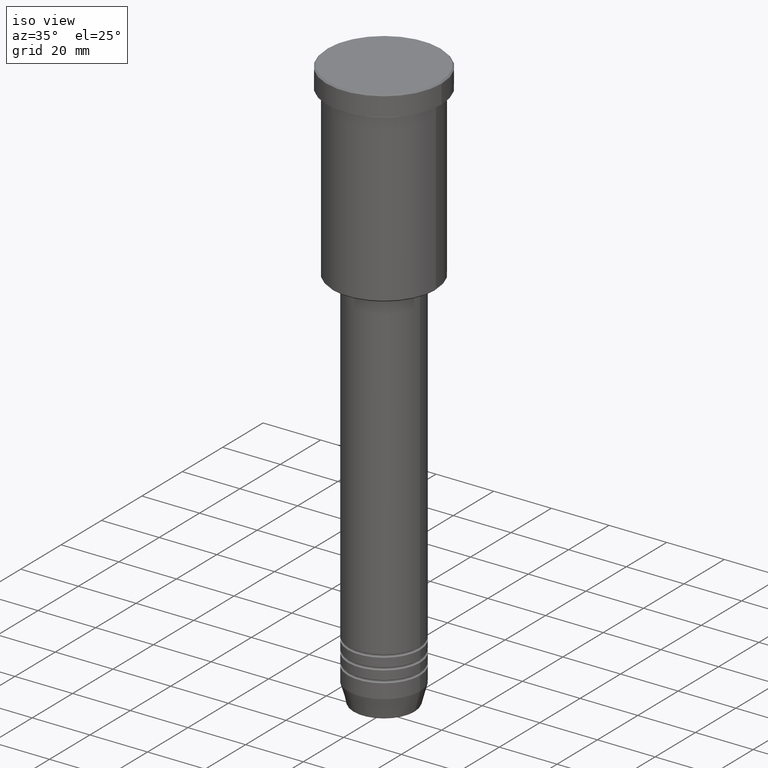
[diagram: clean part render]
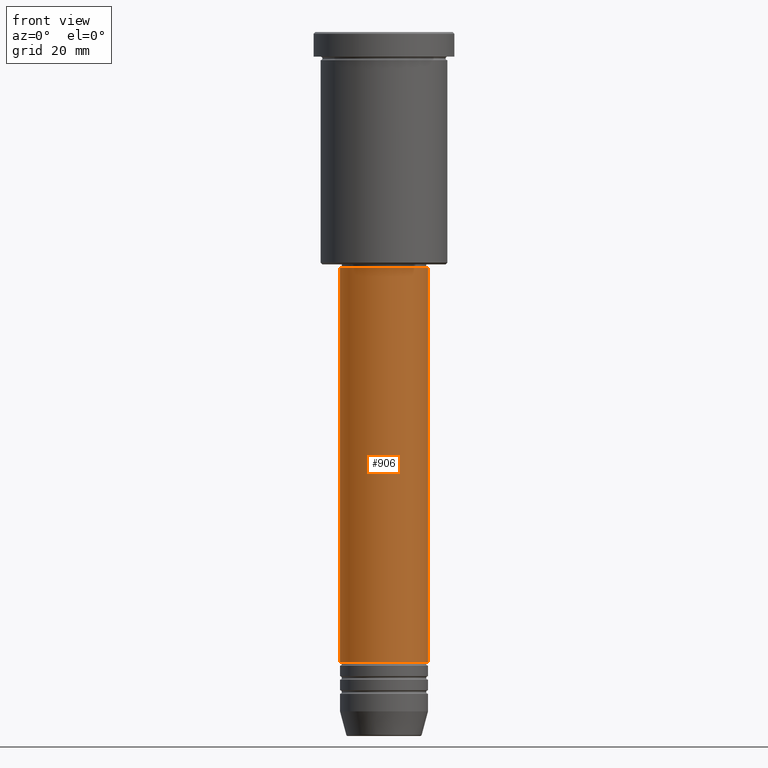
[diagram: tour spotlight — one face highlighted and labeled with its STEP entity id]
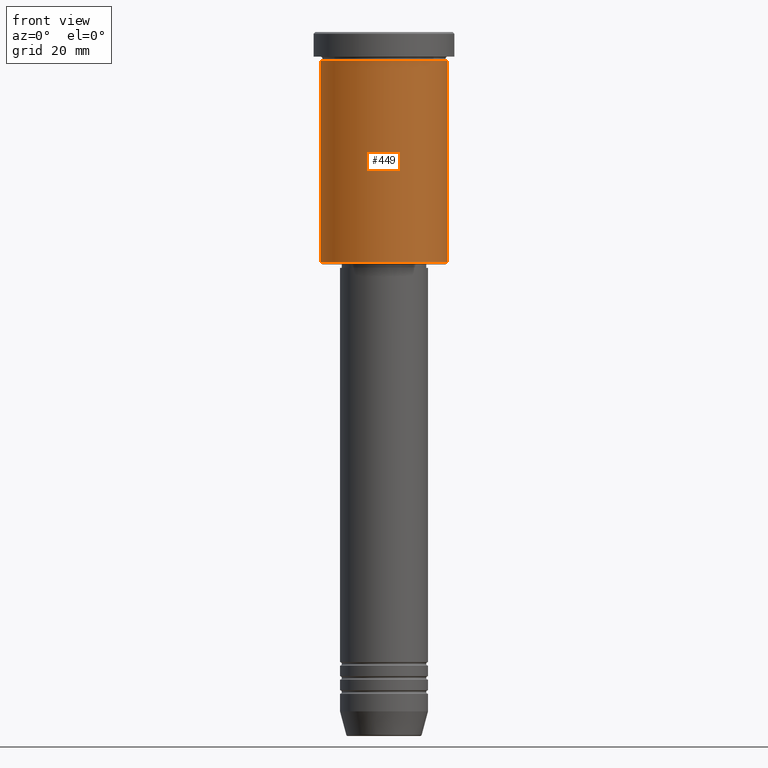
[diagram: tour spotlight — one face highlighted and labeled with its STEP entity id]
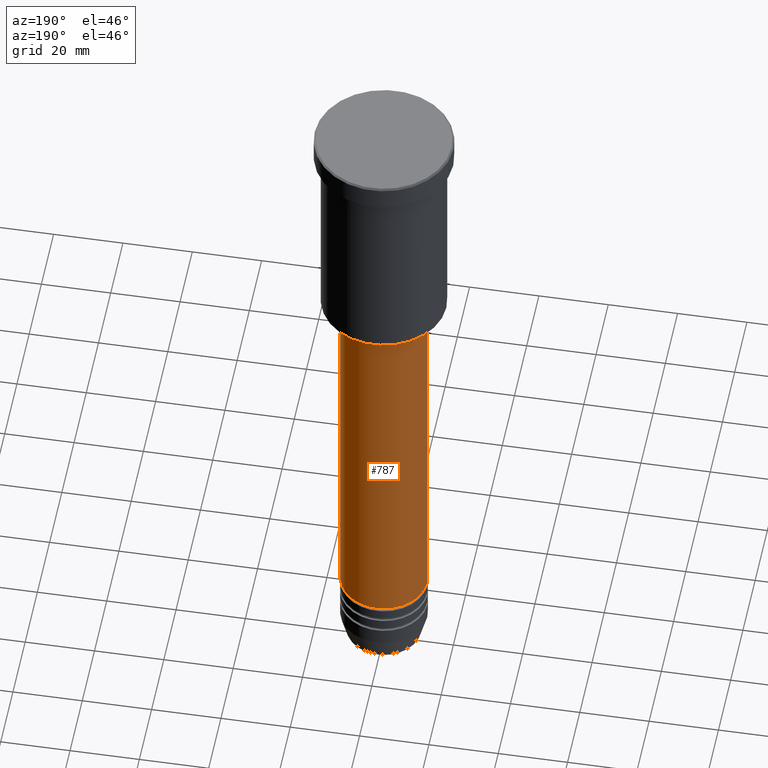
[diagram: tour spotlight — one face highlighted and labeled with its STEP entity id]
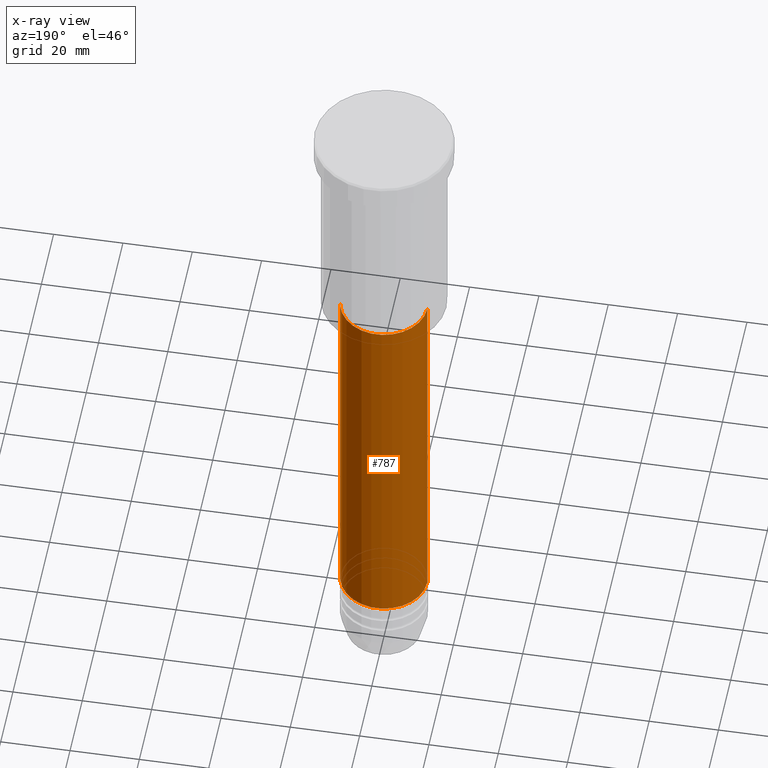
[diagram: x-ray of the same camera — body ghosted, this tour face saturated]
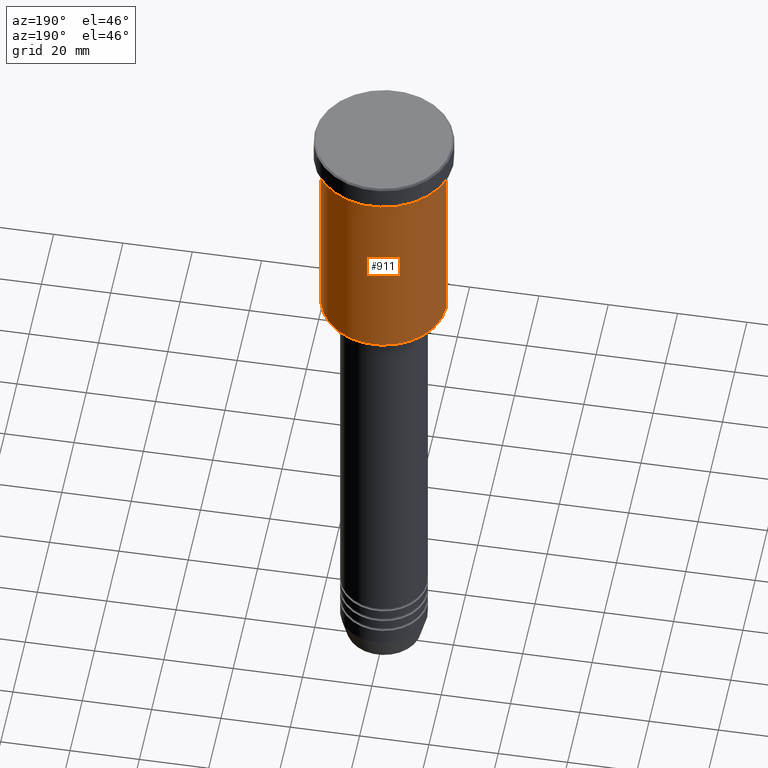
[diagram: tour spotlight — one face highlighted and labeled with its STEP entity id]
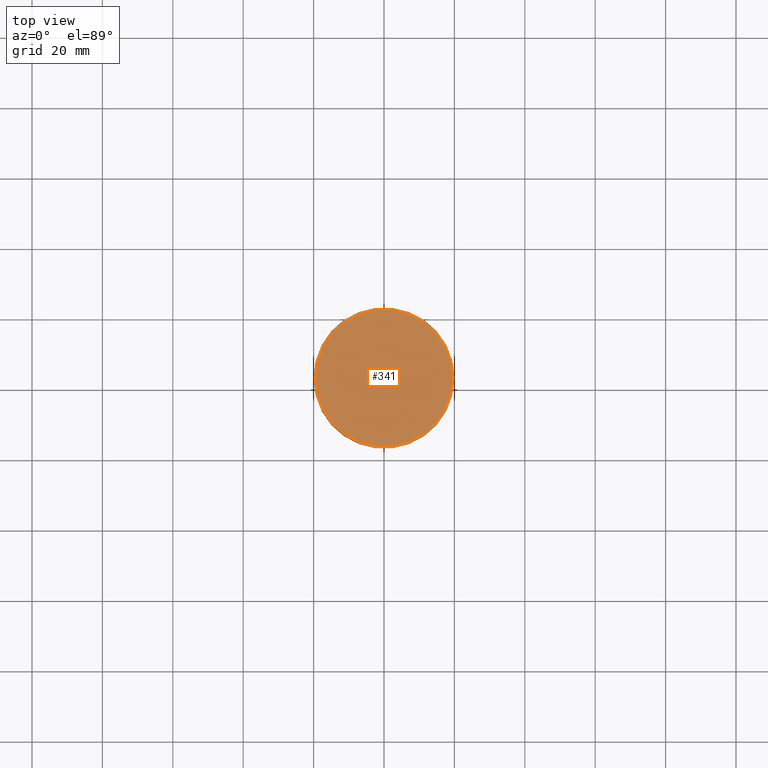
[diagram: tour spotlight — one face highlighted and labeled with its STEP entity id]
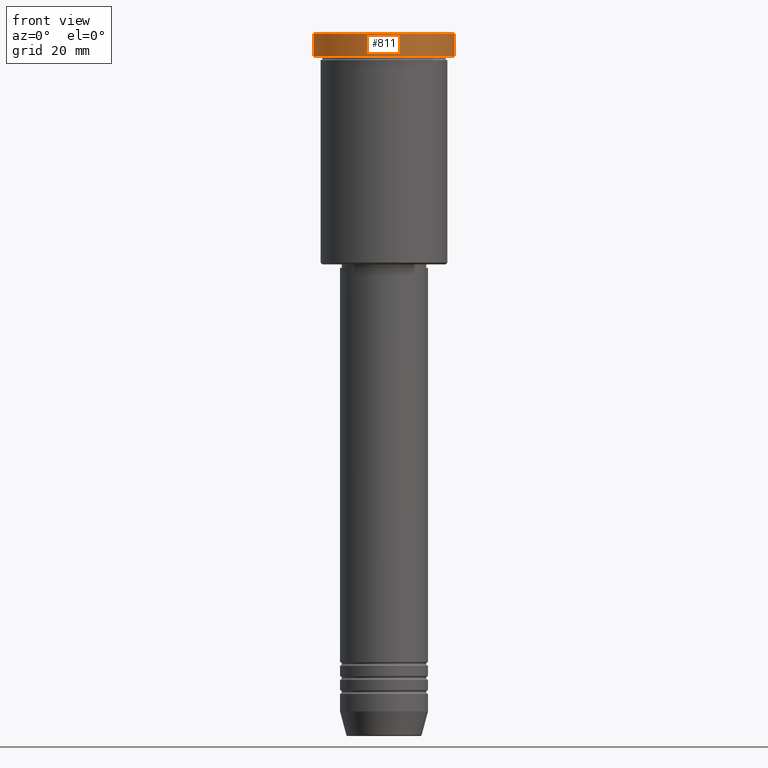
[diagram: tour spotlight — one face highlighted and labeled with its STEP entity id]
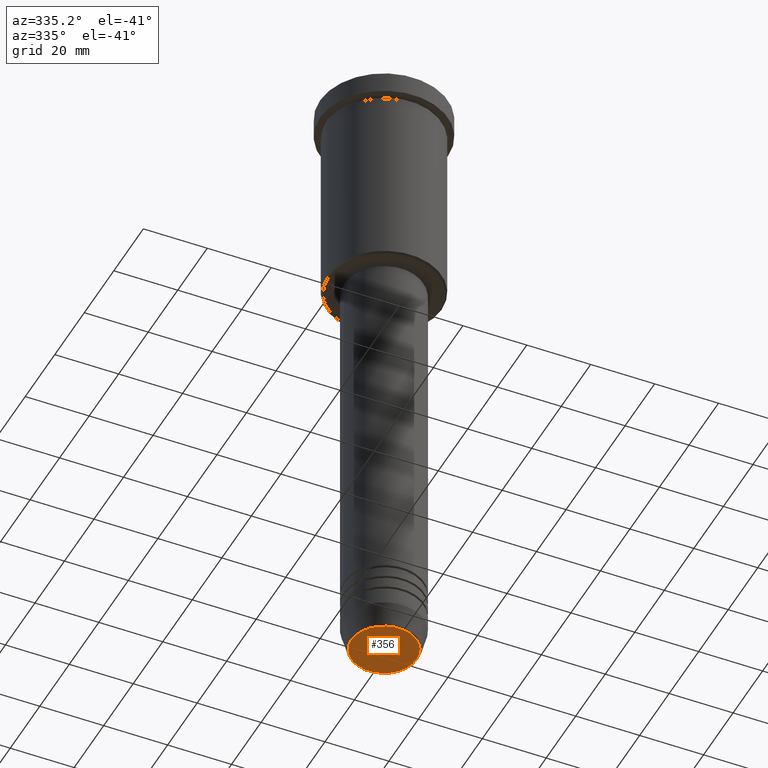
[diagram: tour spotlight — one face highlighted and labeled with its STEP entity id]
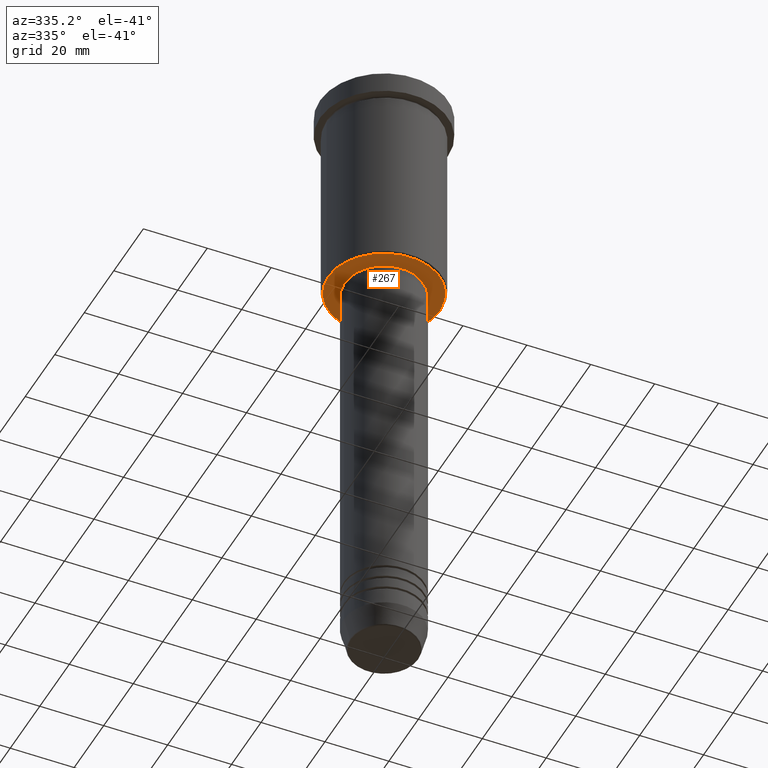
[diagram: tour spotlight — one face highlighted and labeled with its STEP entity id]
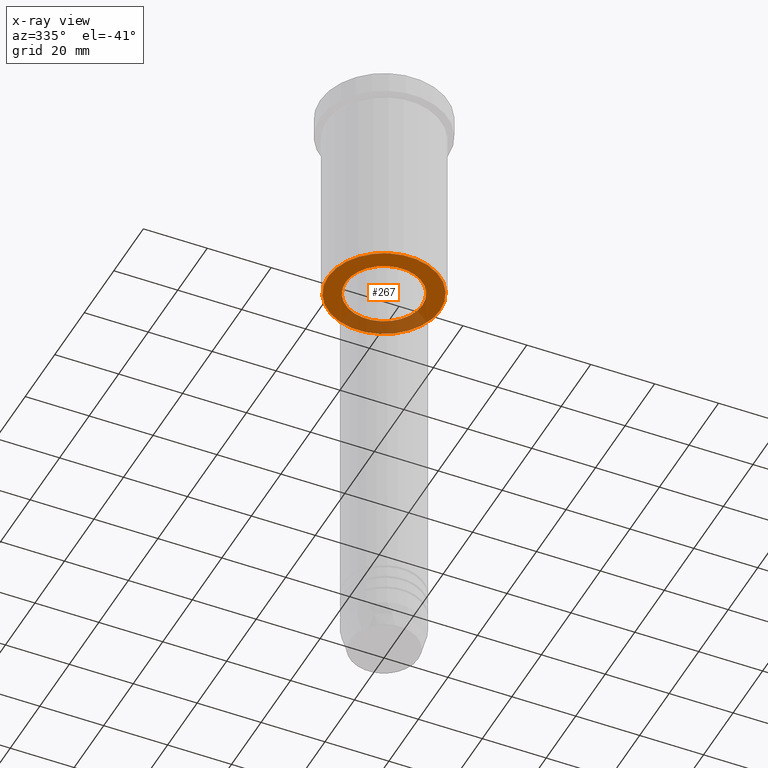
[diagram: x-ray of the same camera — body ghosted, this tour face saturated]
A machine part: a face-by-face anatomy tour. The part has 43 B-rep faces; the first image is the clean iso view, then the 8 largest visible faces are spotlighted one at a time (largest first), each with its STEP entity span.

Face 1 — front view, entity #906. In plain terms, the highlighted cylindrical surface (partial cylindrical patch) has radius 12.5 mm, axis along (-0, -0, 1).
Definition (entity closure, byte-faithful):
#5 = AXIS2_PLACEMENT_3D ( 'NONE', #365, #731, #260 ) ;
#20 = CARTESIAN_POINT ( 'NONE',  ( 12.50000000000000000, 0.000000000000000000, 0.000000000000000000 ) ) ;
#21 = ORIENTED_EDGE ( 'NONE', *, *, #385, .F. ) ;
#29 = CIRCLE ( 'NONE', #270, 12.50000000000000000 ) ;
#63 = CYLINDRICAL_SURFACE ( 'NONE', #462, 12.50000000000000000 ) ;
#109 = ORIENTED_EDGE ( 'NONE', *, *, #586, .T. ) ;
#130 = VERTEX_POINT ( 'NONE', #916 ) ;
#192 = CARTESIAN_POINT ( 'NONE',  ( 0.000000000000000000, 0.000000000000000000, -67.00000000000002842 ) ) ;
#216 = LINE ( 'NONE', #20, #679 ) ;
#260 = DIRECTION ( 'NONE',  ( 1.000000000000000000, 0.000000000000000000, 0.000000000000000000 ) ) ;
#270 = AXIS2_PLACEMENT_3D ( 'NONE', #192, #553, #910 ) ;
#278 = VERTEX_POINT ( 'NONE', #685 ) ;
#365 = CARTESIAN_POINT ( 'NONE',  ( 0.000000000000000000, 0.000000000000000000, -179.0000000000000284 ) ) ;
#385 = EDGE_CURVE ( 'NONE', #130, #519, #1166, .T. ) ;
#462 = AXIS2_PLACEMENT_3D ( 'NONE', #609, #1144, #511 ) ;
#511 = DIRECTION ( 'NONE',  ( 1.000000000000000000, 0.000000000000000000, 0.000000000000000000 ) ) ;
#519 = VERTEX_POINT ( 'NONE', #820 ) ;
#520 = CIRCLE ( 'NONE', #5, 12.50000000000000000 ) ;
#553 = DIRECTION ( 'NONE',  ( -0.000000000000000000, -0.000000000000000000, 1.000000000000000000 ) ) ;
#554 = EDGE_LOOP ( 'NONE', ( #21, #109, #938, #725 ) ) ;
#561 = EDGE_CURVE ( 'NONE', #519, #680, #29, .T. ) ;
#586 = EDGE_CURVE ( 'NONE', #130, #278, #520, .T. ) ;
#609 = CARTESIAN_POINT ( 'NONE',  ( 0.000000000000000000, 0.000000000000000000, 0.000000000000000000 ) ) ;
#677 = EDGE_CURVE ( 'NONE', #278, #680, #216, .T. ) ;
#679 = VECTOR ( 'NONE', #682, 1000.000000000000000 ) ;
#680 = VERTEX_POINT ( 'NONE', #1053 ) ;
#682 = DIRECTION ( 'NONE',  ( -0.000000000000000000, -0.000000000000000000, 1.000000000000000000 ) ) ;
#685 = CARTESIAN_POINT ( 'NONE',  ( 12.50000000000000000, 0.000000000000000000, -179.0000000000000284 ) ) ;
#711 = CARTESIAN_POINT ( 'NONE',  ( -12.50000000000000000, 1.530808498934191521E-15, 0.000000000000000000 ) ) ;
#725 = ORIENTED_EDGE ( 'NONE', *, *, #561, .F. ) ;
#731 = DIRECTION ( 'NONE',  ( -0.000000000000000000, -0.000000000000000000, 1.000000000000000000 ) ) ;
#760 = VECTOR ( 'NONE', #965, 1000.000000000000000 ) ;
#784 = FACE_OUTER_BOUND ( 'NONE', #554, .T. ) ;
#820 = CARTESIAN_POINT ( 'NONE',  ( -12.50000000000000000, 1.530808498934191521E-15, -67.00000000000002842 ) ) ;
#906 = ADVANCED_FACE ( 'NONE', ( #784 ), #63, .T. ) ;
#910 = DIRECTION ( 'NONE',  ( 1.000000000000000000, 0.000000000000000000, 0.000000000000000000 ) ) ;
#916 = CARTESIAN_POINT ( 'NONE',  ( -12.50000000000000000, 1.530808498934191521E-15, -179.0000000000000284 ) ) ;
#938 = ORIENTED_EDGE ( 'NONE', *, *, #677, .T. ) ;
#965 = DIRECTION ( 'NONE',  ( -0.000000000000000000, -0.000000000000000000, 1.000000000000000000 ) ) ;
#1053 = CARTESIAN_POINT ( 'NONE',  ( 12.50000000000000000, 0.000000000000000000, -67.00000000000002842 ) ) ;
#1144 = DIRECTION ( 'NONE',  ( -0.000000000000000000, -0.000000000000000000, 1.000000000000000000 ) ) ;
#1166 = LINE ( 'NONE', #711, #760 ) ;

Face 2 — front view, entity #449. In plain terms, the highlighted cylindrical surface (partial cylindrical patch) has radius 18 mm, axis along (-0, -0, 1).
Definition (entity closure, byte-faithful):
#80 = LINE ( 'NONE', #440, #655 ) ;
#124 = VERTEX_POINT ( 'NONE', #774 ) ;
#196 = CARTESIAN_POINT ( 'NONE',  ( 18.00000000000000000, 0.000000000000000000, -65.49999999999998579 ) ) ;
#205 = CARTESIAN_POINT ( 'NONE',  ( 0.000000000000000000, 0.000000000000000000, -65.49999999999998579 ) ) ;
#264 = CARTESIAN_POINT ( 'NONE',  ( 0.000000000000000000, 0.000000000000000000, 0.000000000000000000 ) ) ;
#282 = DIRECTION ( 'NONE',  ( -1.000000000000000000, 0.000000000000000000, 0.000000000000000000 ) ) ;
#330 = AXIS2_PLACEMENT_3D ( 'NONE', #205, #491, #282 ) ;
#352 = DIRECTION ( 'NONE',  ( -0.000000000000000000, -0.000000000000000000, 1.000000000000000000 ) ) ;
#359 = FACE_OUTER_BOUND ( 'NONE', #423, .T. ) ;
#398 = EDGE_CURVE ( 'NONE', #968, #633, #80, .T. ) ;
#409 = ORIENTED_EDGE ( 'NONE', *, *, #1092, .F. ) ;
#423 = EDGE_LOOP ( 'NONE', ( #1052, #564, #620, #409 ) ) ;
#440 = CARTESIAN_POINT ( 'NONE',  ( -18.00000000000000000, 2.204364238465235428E-15, 0.000000000000000000 ) ) ;
#449 = ADVANCED_FACE ( 'NONE', ( #359 ), #1182, .T. ) ;
#480 = CARTESIAN_POINT ( 'NONE',  ( -18.00000000000000000, 2.204364238465235428E-15, -7.999999999999996447 ) ) ;
#491 = DIRECTION ( 'NONE',  ( -0.000000000000000000, -0.000000000000000000, 1.000000000000000000 ) ) ;
#499 = CARTESIAN_POINT ( 'NONE',  ( 18.00000000000000000, 0.000000000000000000, 0.000000000000000000 ) ) ;
#564 = ORIENTED_EDGE ( 'NONE', *, *, #713, .T. ) ;
#620 = ORIENTED_EDGE ( 'NONE', *, *, #843, .T. ) ;
#626 = CARTESIAN_POINT ( 'NONE',  ( -18.00000000000000000, 2.204364238465235428E-15, -65.49999999999998579 ) ) ;
#633 = VERTEX_POINT ( 'NONE', #480 ) ;
#655 = VECTOR ( 'NONE', #352, 1000.000000000000000 ) ;
#695 = CIRCLE ( 'NONE', #330, 18.00000000000000000 ) ;
#709 = LINE ( 'NONE', #499, #990 ) ;
#713 = EDGE_CURVE ( 'NONE', #968, #1095, #695, .T. ) ;
#774 = CARTESIAN_POINT ( 'NONE',  ( 18.00000000000000000, 0.000000000000000000, -7.999999999999996447 ) ) ;
#802 = AXIS2_PLACEMENT_3D ( 'NONE', #264, #926, #1001 ) ;
#843 = EDGE_CURVE ( 'NONE', #1095, #124, #709, .T. ) ;
#918 = CIRCLE ( 'NONE', #992, 18.00000000000000000 ) ;
#926 = DIRECTION ( 'NONE',  ( -0.000000000000000000, -0.000000000000000000, 1.000000000000000000 ) ) ;
#968 = VERTEX_POINT ( 'NONE', #626 ) ;
#990 = VECTOR ( 'NONE', #1147, 1000.000000000000000 ) ;
#992 = AXIS2_PLACEMENT_3D ( 'NONE', #1129, #1120, #1022 ) ;
#1001 = DIRECTION ( 'NONE',  ( 1.000000000000000000, 0.000000000000000000, 0.000000000000000000 ) ) ;
#1022 = DIRECTION ( 'NONE',  ( 1.000000000000000000, 0.000000000000000000, 0.000000000000000000 ) ) ;
#1052 = ORIENTED_EDGE ( 'NONE', *, *, #398, .F. ) ;
#1092 = EDGE_CURVE ( 'NONE', #633, #124, #918, .T. ) ;
#1095 = VERTEX_POINT ( 'NONE', #196 ) ;
#1120 = DIRECTION ( 'NONE',  ( -0.000000000000000000, -0.000000000000000000, 1.000000000000000000 ) ) ;
#1129 = CARTESIAN_POINT ( 'NONE',  ( 0.000000000000000000, 0.000000000000000000, -7.999999999999996447 ) ) ;
#1147 = DIRECTION ( 'NONE',  ( -0.000000000000000000, -0.000000000000000000, 1.000000000000000000 ) ) ;
#1182 = CYLINDRICAL_SURFACE ( 'NONE', #802, 18.00000000000000000 ) ;

Face 3 — auxiliary view, entity #787. An x-ray twin of the same camera follows (body ghosted, this face saturated) — the face is partly hidden behind the body. In plain terms, the highlighted cylindrical surface (partial cylindrical patch) has radius 12.5 mm, axis along (-0, -0, 1).
Definition (entity closure, byte-faithful):
#20 = CARTESIAN_POINT ( 'NONE',  ( 12.50000000000000000, 0.000000000000000000, 0.000000000000000000 ) ) ;
#39 = CYLINDRICAL_SURFACE ( 'NONE', #127, 12.50000000000000000 ) ;
#45 = DIRECTION ( 'NONE',  ( -0.000000000000000000, -0.000000000000000000, 1.000000000000000000 ) ) ;
#49 = CIRCLE ( 'NONE', #718, 12.50000000000000000 ) ;
#127 = AXIS2_PLACEMENT_3D ( 'NONE', #703, #503, #1158 ) ;
#130 = VERTEX_POINT ( 'NONE', #916 ) ;
#216 = LINE ( 'NONE', #20, #679 ) ;
#278 = VERTEX_POINT ( 'NONE', #685 ) ;
#321 = EDGE_LOOP ( 'NONE', ( #980, #848, #1160, #803 ) ) ;
#350 = DIRECTION ( 'NONE',  ( 1.000000000000000000, 0.000000000000000000, 0.000000000000000000 ) ) ;
#385 = EDGE_CURVE ( 'NONE', #130, #519, #1166, .T. ) ;
#434 = CARTESIAN_POINT ( 'NONE',  ( 0.000000000000000000, 0.000000000000000000, -179.0000000000000284 ) ) ;
#503 = DIRECTION ( 'NONE',  ( -0.000000000000000000, -0.000000000000000000, 1.000000000000000000 ) ) ;
#519 = VERTEX_POINT ( 'NONE', #820 ) ;
#557 = CIRCLE ( 'NONE', #738, 12.50000000000000000 ) ;
#677 = EDGE_CURVE ( 'NONE', #278, #680, #216, .T. ) ;
#679 = VECTOR ( 'NONE', #682, 1000.000000000000000 ) ;
#680 = VERTEX_POINT ( 'NONE', #1053 ) ;
#682 = DIRECTION ( 'NONE',  ( -0.000000000000000000, -0.000000000000000000, 1.000000000000000000 ) ) ;
#685 = CARTESIAN_POINT ( 'NONE',  ( 12.50000000000000000, 0.000000000000000000, -179.0000000000000284 ) ) ;
#703 = CARTESIAN_POINT ( 'NONE',  ( 0.000000000000000000, 0.000000000000000000, 0.000000000000000000 ) ) ;
#711 = CARTESIAN_POINT ( 'NONE',  ( -12.50000000000000000, 1.530808498934191521E-15, 0.000000000000000000 ) ) ;
#718 = AXIS2_PLACEMENT_3D ( 'NONE', #1099, #740, #350 ) ;
#738 = AXIS2_PLACEMENT_3D ( 'NONE', #434, #45, #887 ) ;
#740 = DIRECTION ( 'NONE',  ( -0.000000000000000000, -0.000000000000000000, 1.000000000000000000 ) ) ;
#760 = VECTOR ( 'NONE', #965, 1000.000000000000000 ) ;
#787 = ADVANCED_FACE ( 'NONE', ( #863 ), #39, .T. ) ;
#803 = ORIENTED_EDGE ( 'NONE', *, *, #677, .F. ) ;
#820 = CARTESIAN_POINT ( 'NONE',  ( -12.50000000000000000, 1.530808498934191521E-15, -67.00000000000002842 ) ) ;
#848 = ORIENTED_EDGE ( 'NONE', *, *, #385, .T. ) ;
#863 = FACE_OUTER_BOUND ( 'NONE', #321, .T. ) ;
#887 = DIRECTION ( 'NONE',  ( 1.000000000000000000, 0.000000000000000000, 0.000000000000000000 ) ) ;
#897 = EDGE_CURVE ( 'NONE', #278, #130, #557, .T. ) ;
#916 = CARTESIAN_POINT ( 'NONE',  ( -12.50000000000000000, 1.530808498934191521E-15, -179.0000000000000284 ) ) ;
#944 = EDGE_CURVE ( 'NONE', #680, #519, #49, .T. ) ;
#965 = DIRECTION ( 'NONE',  ( -0.000000000000000000, -0.000000000000000000, 1.000000000000000000 ) ) ;
#980 = ORIENTED_EDGE ( 'NONE', *, *, #897, .T. ) ;
#1053 = CARTESIAN_POINT ( 'NONE',  ( 12.50000000000000000, 0.000000000000000000, -67.00000000000002842 ) ) ;
#1099 = CARTESIAN_POINT ( 'NONE',  ( 0.000000000000000000, 0.000000000000000000, -67.00000000000002842 ) ) ;
#1158 = DIRECTION ( 'NONE',  ( 1.000000000000000000, 0.000000000000000000, 0.000000000000000000 ) ) ;
#1160 = ORIENTED_EDGE ( 'NONE', *, *, #944, .F. ) ;
#1166 = LINE ( 'NONE', #711, #760 ) ;

Face 4 — auxiliary view, entity #911. In plain terms, the highlighted cylindrical surface (partial cylindrical patch) has radius 18 mm, axis along (-0, -0, 1).
Definition (entity closure, byte-faithful):
#80 = LINE ( 'NONE', #440, #655 ) ;
#124 = VERTEX_POINT ( 'NONE', #774 ) ;
#159 = ORIENTED_EDGE ( 'NONE', *, *, #398, .T. ) ;
#185 = DIRECTION ( 'NONE',  ( -0.000000000000000000, -0.000000000000000000, 1.000000000000000000 ) ) ;
#196 = CARTESIAN_POINT ( 'NONE',  ( 18.00000000000000000, 0.000000000000000000, -65.49999999999998579 ) ) ;
#220 = AXIS2_PLACEMENT_3D ( 'NONE', #315, #801, #688 ) ;
#252 = ORIENTED_EDGE ( 'NONE', *, *, #509, .T. ) ;
#287 = AXIS2_PLACEMENT_3D ( 'NONE', #936, #400, #308 ) ;
#308 = DIRECTION ( 'NONE',  ( 1.000000000000000000, 0.000000000000000000, 0.000000000000000000 ) ) ;
#315 = CARTESIAN_POINT ( 'NONE',  ( 0.000000000000000000, 0.000000000000000000, 0.000000000000000000 ) ) ;
#319 = CYLINDRICAL_SURFACE ( 'NONE', #220, 18.00000000000000000 ) ;
#338 = ORIENTED_EDGE ( 'NONE', *, *, #843, .F. ) ;
#352 = DIRECTION ( 'NONE',  ( -0.000000000000000000, -0.000000000000000000, 1.000000000000000000 ) ) ;
#368 = AXIS2_PLACEMENT_3D ( 'NONE', #643, #185, #1097 ) ;
#398 = EDGE_CURVE ( 'NONE', #968, #633, #80, .T. ) ;
#400 = DIRECTION ( 'NONE',  ( -0.000000000000000000, -0.000000000000000000, 1.000000000000000000 ) ) ;
#440 = CARTESIAN_POINT ( 'NONE',  ( -18.00000000000000000, 2.204364238465235428E-15, 0.000000000000000000 ) ) ;
#480 = CARTESIAN_POINT ( 'NONE',  ( -18.00000000000000000, 2.204364238465235428E-15, -7.999999999999996447 ) ) ;
#499 = CARTESIAN_POINT ( 'NONE',  ( 18.00000000000000000, 0.000000000000000000, 0.000000000000000000 ) ) ;
#509 = EDGE_CURVE ( 'NONE', #1095, #968, #539, .T. ) ;
#539 = CIRCLE ( 'NONE', #368, 18.00000000000000000 ) ;
#626 = CARTESIAN_POINT ( 'NONE',  ( -18.00000000000000000, 2.204364238465235428E-15, -65.49999999999998579 ) ) ;
#628 = EDGE_CURVE ( 'NONE', #124, #633, #1173, .T. ) ;
#633 = VERTEX_POINT ( 'NONE', #480 ) ;
#643 = CARTESIAN_POINT ( 'NONE',  ( 0.000000000000000000, 0.000000000000000000, -65.49999999999998579 ) ) ;
#655 = VECTOR ( 'NONE', #352, 1000.000000000000000 ) ;
#688 = DIRECTION ( 'NONE',  ( 1.000000000000000000, 0.000000000000000000, 0.000000000000000000 ) ) ;
#699 = EDGE_LOOP ( 'NONE', ( #252, #159, #1058, #338 ) ) ;
#709 = LINE ( 'NONE', #499, #990 ) ;
#774 = CARTESIAN_POINT ( 'NONE',  ( 18.00000000000000000, 0.000000000000000000, -7.999999999999996447 ) ) ;
#801 = DIRECTION ( 'NONE',  ( -0.000000000000000000, -0.000000000000000000, 1.000000000000000000 ) ) ;
#843 = EDGE_CURVE ( 'NONE', #1095, #124, #709, .T. ) ;
#875 = FACE_OUTER_BOUND ( 'NONE', #699, .T. ) ;
#911 = ADVANCED_FACE ( 'NONE', ( #875 ), #319, .T. ) ;
#936 = CARTESIAN_POINT ( 'NONE',  ( 0.000000000000000000, 0.000000000000000000, -7.999999999999996447 ) ) ;
#968 = VERTEX_POINT ( 'NONE', #626 ) ;
#990 = VECTOR ( 'NONE', #1147, 1000.000000000000000 ) ;
#1058 = ORIENTED_EDGE ( 'NONE', *, *, #628, .F. ) ;
#1095 = VERTEX_POINT ( 'NONE', #196 ) ;
#1097 = DIRECTION ( 'NONE',  ( -1.000000000000000000, 0.000000000000000000, 0.000000000000000000 ) ) ;
#1147 = DIRECTION ( 'NONE',  ( -0.000000000000000000, -0.000000000000000000, 1.000000000000000000 ) ) ;
#1173 = CIRCLE ( 'NONE', #287, 18.00000000000000000 ) ;

Face 5 — top view, entity #341. In plain terms, the highlighted planar face has unit normal (0, -0, 1).
Definition (entity closure, byte-faithful):
#114 = EDGE_CURVE ( 'NONE', #1108, #767, #426, .T. ) ;
#191 = EDGE_CURVE ( 'NONE', #767, #1108, #988, .T. ) ;
#208 = CARTESIAN_POINT ( 'NONE',  ( 0.000000000000000000, 0.000000000000000000, 0.000000000000000000 ) ) ;
#214 = ORIENTED_EDGE ( 'NONE', *, *, #191, .T. ) ;
#254 = AXIS2_PLACEMENT_3D ( 'NONE', #401, #851, #487 ) ;
#341 = ADVANCED_FACE ( 'NONE', ( #805 ), #604, .T. ) ;
#401 = CARTESIAN_POINT ( 'NONE',  ( 0.000000000000000000, 0.000000000000000000, 0.000000000000000000 ) ) ;
#426 = CIRCLE ( 'NONE', #444, 19.49999999999998934 ) ;
#429 = DIRECTION ( 'NONE',  ( 0.000000000000000000, -0.000000000000000000, 1.000000000000000000 ) ) ;
#444 = AXIS2_PLACEMENT_3D ( 'NONE', #208, #768, #574 ) ;
#456 = ORIENTED_EDGE ( 'NONE', *, *, #114, .T. ) ;
#487 = DIRECTION ( 'NONE',  ( 1.000000000000000000, 0.000000000000000000, 0.000000000000000000 ) ) ;
#571 = CARTESIAN_POINT ( 'NONE',  ( -19.49999999999998934, 0.000000000000000000, 0.000000000000000000 ) ) ;
#574 = DIRECTION ( 'NONE',  ( 1.000000000000000000, 0.000000000000000000, 0.000000000000000000 ) ) ;
#604 = PLANE ( 'NONE',  #621 ) ;
#621 = AXIS2_PLACEMENT_3D ( 'NONE', #689, #429, #814 ) ;
#689 = CARTESIAN_POINT ( 'NONE',  ( 0.000000000000000000, 0.000000000000000000, 0.000000000000000000 ) ) ;
#767 = VERTEX_POINT ( 'NONE', #571 ) ;
#768 = DIRECTION ( 'NONE',  ( -0.000000000000000000, -0.000000000000000000, 1.000000000000000000 ) ) ;
#805 = FACE_OUTER_BOUND ( 'NONE', #993, .T. ) ;
#814 = DIRECTION ( 'NONE',  ( 1.000000000000000000, 0.000000000000000000, 0.000000000000000000 ) ) ;
#851 = DIRECTION ( 'NONE',  ( -0.000000000000000000, -0.000000000000000000, 1.000000000000000000 ) ) ;
#950 = CARTESIAN_POINT ( 'NONE',  ( 19.49999999999998934, 2.418677428316021937E-15, 0.000000000000000000 ) ) ;
#988 = CIRCLE ( 'NONE', #254, 19.49999999999998934 ) ;
#993 = EDGE_LOOP ( 'NONE', ( #214, #456 ) ) ;
#1108 = VERTEX_POINT ( 'NONE', #950 ) ;

Face 6 — front view, entity #811. In plain terms, the highlighted cylindrical surface (partial cylindrical patch) has radius 20 mm, axis along (-0, -0, 1).
Definition (entity closure, byte-faithful):
#31 = AXIS2_PLACEMENT_3D ( 'NONE', #789, #1061, #156 ) ;
#55 = DIRECTION ( 'NONE',  ( 0.000000000000000000, 0.000000000000000000, -1.000000000000000000 ) ) ;
#74 = CIRCLE ( 'NONE', #541, 20.00000000000000000 ) ;
#156 = DIRECTION ( 'NONE',  ( 1.000000000000000000, 0.000000000000000000, 0.000000000000000000 ) ) ;
#258 = DIRECTION ( 'NONE',  ( 1.000000000000000000, 0.000000000000000000, 0.000000000000000000 ) ) ;
#344 = CYLINDRICAL_SURFACE ( 'NONE', #31, 20.00000000000000000 ) ;
#351 = ORIENTED_EDGE ( 'NONE', *, *, #402, .T. ) ;
#363 = CARTESIAN_POINT ( 'NONE',  ( 20.00000000000000000, 0.000000000000000000, -6.999999999999995559 ) ) ;
#373 = VERTEX_POINT ( 'NONE', #1171 ) ;
#402 = EDGE_CURVE ( 'NONE', #786, #1078, #577, .T. ) ;
#431 = VECTOR ( 'NONE', #570, 1000.000000000000000 ) ;
#458 = LINE ( 'NONE', #1103, #694 ) ;
#459 = EDGE_CURVE ( 'NONE', #373, #1078, #458, .T. ) ;
#541 = AXIS2_PLACEMENT_3D ( 'NONE', #714, #996, #258 ) ;
#570 = DIRECTION ( 'NONE',  ( -0.000000000000000000, -0.000000000000000000, 1.000000000000000000 ) ) ;
#573 = ORIENTED_EDGE ( 'NONE', *, *, #459, .F. ) ;
#577 = CIRCLE ( 'NONE', #894, 20.00000000000000000 ) ;
#597 = VERTEX_POINT ( 'NONE', #363 ) ;
#598 = ORIENTED_EDGE ( 'NONE', *, *, #1183, .T. ) ;
#684 = FACE_OUTER_BOUND ( 'NONE', #987, .T. ) ;
#694 = VECTOR ( 'NONE', #829, 1000.000000000000000 ) ;
#697 = DIRECTION ( 'NONE',  ( 1.000000000000000000, 0.000000000000000000, 0.000000000000000000 ) ) ;
#714 = CARTESIAN_POINT ( 'NONE',  ( 0.000000000000000000, 0.000000000000000000, -6.999999999999995559 ) ) ;
#786 = VERTEX_POINT ( 'NONE', #1044 ) ;
#789 = CARTESIAN_POINT ( 'NONE',  ( 0.000000000000000000, 0.000000000000000000, 0.000000000000000000 ) ) ;
#811 = ADVANCED_FACE ( 'NONE', ( #684 ), #344, .T. ) ;
#829 = DIRECTION ( 'NONE',  ( -0.000000000000000000, -0.000000000000000000, 1.000000000000000000 ) ) ;
#836 = ORIENTED_EDGE ( 'NONE', *, *, #1027, .T. ) ;
#844 = LINE ( 'NONE', #1111, #431 ) ;
#857 = CARTESIAN_POINT ( 'NONE',  ( -20.00000000000000000, 2.449293598294706513E-15, -0.4999999999999970024 ) ) ;
#894 = AXIS2_PLACEMENT_3D ( 'NONE', #1059, #55, #697 ) ;
#987 = EDGE_LOOP ( 'NONE', ( #573, #836, #598, #351 ) ) ;
#996 = DIRECTION ( 'NONE',  ( -0.000000000000000000, -0.000000000000000000, 1.000000000000000000 ) ) ;
#1027 = EDGE_CURVE ( 'NONE', #373, #597, #74, .T. ) ;
#1044 = CARTESIAN_POINT ( 'NONE',  ( 20.00000000000000000, 0.000000000000000000, -0.4999999999999970024 ) ) ;
#1059 = CARTESIAN_POINT ( 'NONE',  ( 0.000000000000000000, 0.000000000000000000, -0.4999999999999970024 ) ) ;
#1061 = DIRECTION ( 'NONE',  ( -0.000000000000000000, -0.000000000000000000, 1.000000000000000000 ) ) ;
#1078 = VERTEX_POINT ( 'NONE', #857 ) ;
#1103 = CARTESIAN_POINT ( 'NONE',  ( -20.00000000000000000, 2.449293598294706513E-15, 0.000000000000000000 ) ) ;
#1111 = CARTESIAN_POINT ( 'NONE',  ( 20.00000000000000000, 0.000000000000000000, 0.000000000000000000 ) ) ;
#1171 = CARTESIAN_POINT ( 'NONE',  ( -20.00000000000000000, 2.449293598294706513E-15, -6.999999999999995559 ) ) ;
#1183 = EDGE_CURVE ( 'NONE', #597, #786, #844, .T. ) ;

Face 7 — auxiliary view, entity #356. In plain terms, the highlighted planar face has unit normal (0, -0, 1).
Definition (entity closure, byte-faithful):
#38 = CARTESIAN_POINT ( 'NONE',  ( 0.000000000000000000, 0.000000000000000000, -200.0000000000000000 ) ) ;
#77 = PLANE ( 'NONE',  #87 ) ;
#87 = AXIS2_PLACEMENT_3D ( 'NONE', #1076, #522, #248 ) ;
#128 = CIRCLE ( 'NONE', #464, 10.24069215899266538 ) ;
#146 = DIRECTION ( 'NONE',  ( 1.000000000000000000, 0.000000000000000000, 0.000000000000000000 ) ) ;
#209 = DIRECTION ( 'NONE',  ( 0.000000000000000000, 0.000000000000000000, -1.000000000000000000 ) ) ;
#248 = DIRECTION ( 'NONE',  ( 1.000000000000000000, 0.000000000000000000, 0.000000000000000000 ) ) ;
#253 = FACE_OUTER_BOUND ( 'NONE', #562, .T. ) ;
#255 = CIRCLE ( 'NONE', #716, 10.24069215899266538 ) ;
#356 = ADVANCED_FACE ( 'NONE', ( #253 ), #77, .F. ) ;
#362 = EDGE_CURVE ( 'NONE', #1038, #854, #255, .T. ) ;
#367 = ORIENTED_EDGE ( 'NONE', *, *, #1152, .T. ) ;
#464 = AXIS2_PLACEMENT_3D ( 'NONE', #38, #209, #552 ) ;
#517 = CARTESIAN_POINT ( 'NONE',  ( 10.24069215899266538, 0.000000000000000000, -200.0000000000000000 ) ) ;
#522 = DIRECTION ( 'NONE',  ( 0.000000000000000000, -0.000000000000000000, 1.000000000000000000 ) ) ;
#552 = DIRECTION ( 'NONE',  ( 1.000000000000000000, 0.000000000000000000, 0.000000000000000000 ) ) ;
#562 = EDGE_LOOP ( 'NONE', ( #367, #580 ) ) ;
#580 = ORIENTED_EDGE ( 'NONE', *, *, #362, .T. ) ;
#623 = CARTESIAN_POINT ( 'NONE',  ( 0.000000000000000000, 0.000000000000000000, -200.0000000000000000 ) ) ;
#716 = AXIS2_PLACEMENT_3D ( 'NONE', #623, #883, #146 ) ;
#727 = CARTESIAN_POINT ( 'NONE',  ( -10.24069215899266538, 1.283696036640842967E-15, -200.0000000000000000 ) ) ;
#854 = VERTEX_POINT ( 'NONE', #517 ) ;
#883 = DIRECTION ( 'NONE',  ( 0.000000000000000000, 0.000000000000000000, -1.000000000000000000 ) ) ;
#1038 = VERTEX_POINT ( 'NONE', #727 ) ;
#1076 = CARTESIAN_POINT ( 'NONE',  ( 0.000000000000000000, 0.000000000000000000, -200.0000000000000000 ) ) ;
#1152 = EDGE_CURVE ( 'NONE', #854, #1038, #128, .T. ) ;

Face 8 — auxiliary view, entity #267. An x-ray twin of the same camera follows (body ghosted, this face saturated) — the face is partly hidden behind the body. In plain terms, the highlighted planar face has unit normal (0, 0, -1).
Definition (entity closure, byte-faithful):
#2 = ORIENTED_EDGE ( 'NONE', *, *, #493, .T. ) ;
#47 = FACE_OUTER_BOUND ( 'NONE', #902, .T. ) ;
#101 = CIRCLE ( 'NONE', #404, 17.49999999999998934 ) ;
#135 = CARTESIAN_POINT ( 'NONE',  ( -17.49999999999998934, 2.173748068486550852E-15, -66.00000000000000000 ) ) ;
#144 = AXIS2_PLACEMENT_3D ( 'NONE', #483, #328, #905 ) ;
#149 = ORIENTED_EDGE ( 'NONE', *, *, #298, .T. ) ;
#170 = DIRECTION ( 'NONE',  ( 1.000000000000000000, 0.000000000000000000, 0.000000000000000000 ) ) ;
#176 = DIRECTION ( 'NONE',  ( 0.000000000000000000, 0.000000000000000000, -1.000000000000000000 ) ) ;
#189 = EDGE_LOOP ( 'NONE', ( #149, #826 ) ) ;
#267 = ADVANCED_FACE ( 'NONE', ( #47, #381 ), #1132, .T. ) ;
#298 = EDGE_CURVE ( 'NONE', #1020, #497, #654, .T. ) ;
#310 = AXIS2_PLACEMENT_3D ( 'NONE', #325, #794, #170 ) ;
#325 = CARTESIAN_POINT ( 'NONE',  ( 0.000000000000000000, 0.000000000000000000, -66.00000000000000000 ) ) ;
#328 = DIRECTION ( 'NONE',  ( -0.000000000000000000, -0.000000000000000000, 1.000000000000000000 ) ) ;
#369 = CIRCLE ( 'NONE', #871, 17.49999999999998934 ) ;
#372 = DIRECTION ( 'NONE',  ( 0.000000000000000000, 0.000000000000000000, -1.000000000000000000 ) ) ;
#381 = FACE_BOUND ( 'NONE', #189, .T. ) ;
#404 = AXIS2_PLACEMENT_3D ( 'NONE', #999, #176, #1180 ) ;
#406 = DIRECTION ( 'NONE',  ( -1.000000000000000000, 0.000000000000000000, -0.000000000000000000 ) ) ;
#483 = CARTESIAN_POINT ( 'NONE',  ( 0.000000000000000000, 0.000000000000000000, -66.00000000000000000 ) ) ;
#493 = EDGE_CURVE ( 'NONE', #704, #981, #369, .T. ) ;
#497 = VERTEX_POINT ( 'NONE', #1016 ) ;
#579 = CIRCLE ( 'NONE', #310, 12.00000000000000000 ) ;
#587 = EDGE_CURVE ( 'NONE', #981, #704, #101, .T. ) ;
#654 = CIRCLE ( 'NONE', #144, 12.00000000000000000 ) ;
#667 = CARTESIAN_POINT ( 'NONE',  ( 0.000000000000000000, 18.00000000000000000, -66.00000000000000000 ) ) ;
#704 = VERTEX_POINT ( 'NONE', #135 ) ;
#723 = ORIENTED_EDGE ( 'NONE', *, *, #587, .T. ) ;
#741 = DIRECTION ( 'NONE',  ( -1.000000000000000000, 0.000000000000000000, 0.000000000000000000 ) ) ;
#794 = DIRECTION ( 'NONE',  ( -0.000000000000000000, -0.000000000000000000, 1.000000000000000000 ) ) ;
#817 = CARTESIAN_POINT ( 'NONE',  ( 17.49999999999998934, 0.000000000000000000, -66.00000000000000000 ) ) ;
#826 = ORIENTED_EDGE ( 'NONE', *, *, #833, .T. ) ;
#833 = EDGE_CURVE ( 'NONE', #497, #1020, #579, .T. ) ;
#871 = AXIS2_PLACEMENT_3D ( 'NONE', #923, #372, #741 ) ;
#893 = AXIS2_PLACEMENT_3D ( 'NONE', #667, #941, #406 ) ;
#902 = EDGE_LOOP ( 'NONE', ( #723, #2 ) ) ;
#905 = DIRECTION ( 'NONE',  ( 1.000000000000000000, 0.000000000000000000, 0.000000000000000000 ) ) ;
#923 = CARTESIAN_POINT ( 'NONE',  ( 0.000000000000000000, 0.000000000000000000, -66.00000000000000000 ) ) ;
#941 = DIRECTION ( 'NONE',  ( 0.000000000000000000, 0.000000000000000000, -1.000000000000000000 ) ) ;
#981 = VERTEX_POINT ( 'NONE', #817 ) ;
#999 = CARTESIAN_POINT ( 'NONE',  ( 0.000000000000000000, 0.000000000000000000, -66.00000000000000000 ) ) ;
#1016 = CARTESIAN_POINT ( 'NONE',  ( -12.00000000000000000, 1.469576158976823947E-15, -66.00000000000000000 ) ) ;
#1020 = VERTEX_POINT ( 'NONE', #1170 ) ;
#1132 = PLANE ( 'NONE',  #893 ) ;
#1170 = CARTESIAN_POINT ( 'NONE',  ( 12.00000000000000000, 0.000000000000000000, -66.00000000000000000 ) ) ;
#1180 = DIRECTION ( 'NONE',  ( -1.000000000000000000, 0.000000000000000000, 0.000000000000000000 ) ) ;